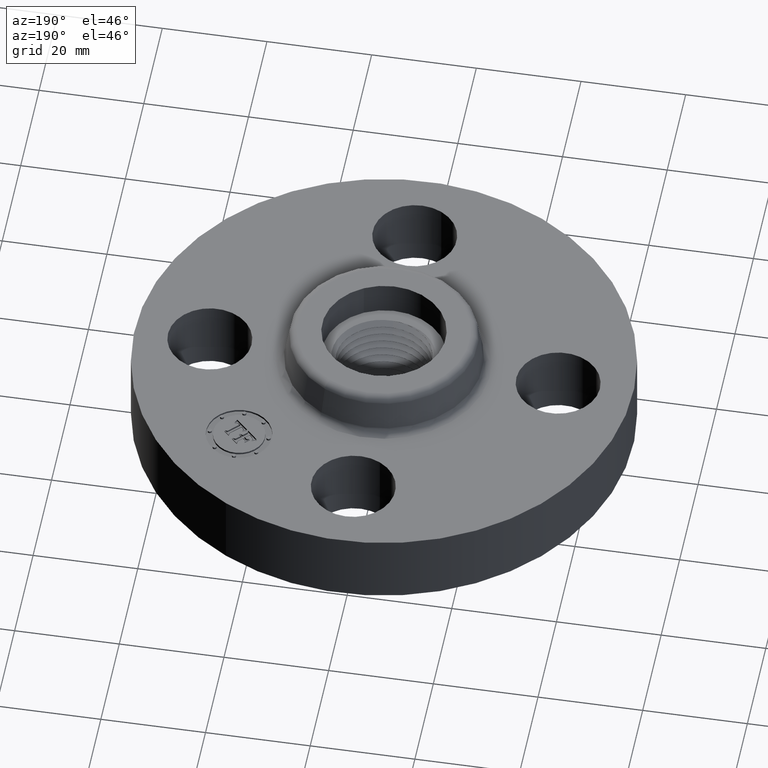
[diagram: clean part render]
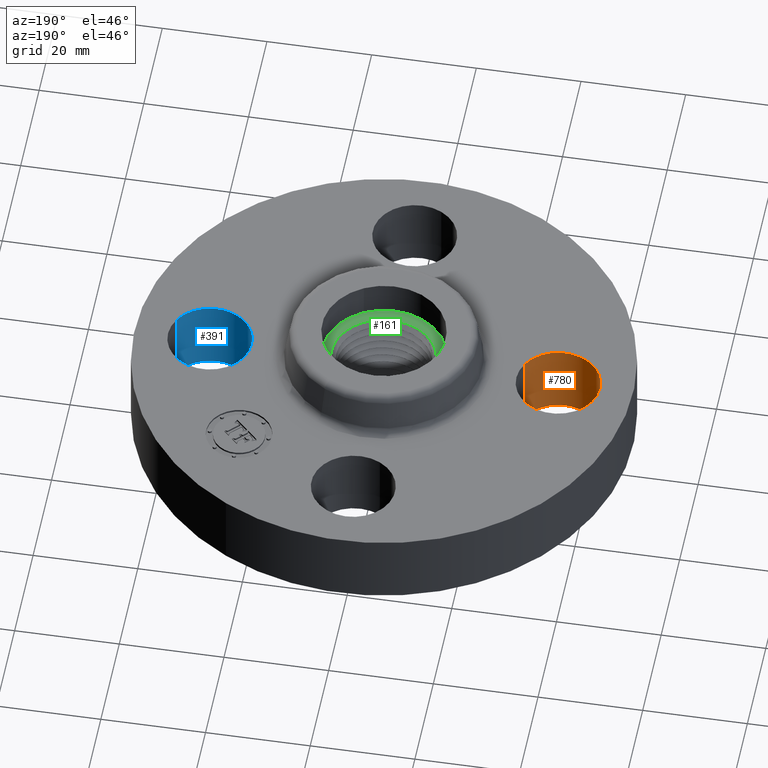
[diagram: same view with three faces highlighted in distinct colors, each labeled with its STEP entity id]
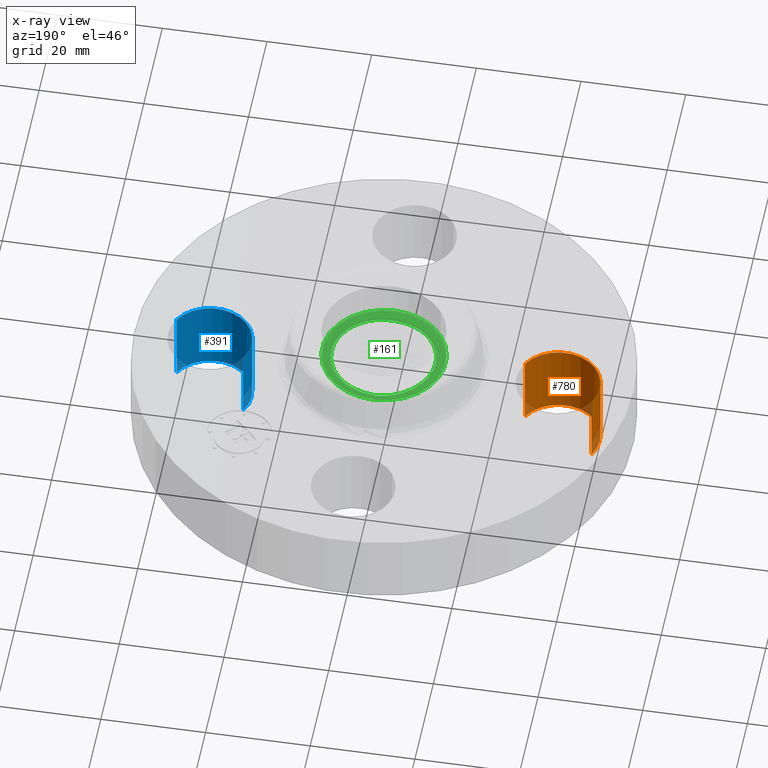
[diagram: x-ray of the same camera — body ghosted, the three highlighted faces saturated]
A machine part, auxiliary view with three faces highlighted in distinct colors.
The next image is the same camera in x-ray (body ghosted, the three faces saturated) — at least one of them is partly hidden behind the body in this view.
Their STEP definitions:

[orange] entity #780 — the highlighted cylindrical surface (partial cylindrical patch) has radius 8.001 mm, axis along (-0, 0, -1).
#672=AXIS2_PLACEMENT_3D('Circle Axis2P3D',#670,#671,$) ;
#753=AXIS2_PLACEMENT_3D('Cylinder Axis2P3D',#750,#751,#752) ;
#771=AXIS2_PLACEMENT_3D('Circle Axis2P3D',#769,#770,$) ;
#670=CARTESIAN_POINT('Axis2P3D Location',(-1.31000000001,-1.39870617276E-016,0.)) ;
#674=CARTESIAN_POINT('Vertex',(-1.03356149301,-0.151019044661,0.)) ;
#676=CARTESIAN_POINT('Vertex',(-1.586438507,0.151019044661,-6.99353086378E-017)) ;
#750=CARTESIAN_POINT('Axis2P3D Location',(-1.31000000001,-1.60428730689E-016,0.556062992128)) ;
#755=CARTESIAN_POINT('Line Origine',(-1.03356149301,-0.151019044661,0.280000000001)) ;
#759=CARTESIAN_POINT('Vertex',(-1.03356149301,-0.151019044661,0.560000000002)) ;
#762=CARTESIAN_POINT('Line Origine',(-1.586438507,0.151019044661,0.280000000001)) ;
#766=CARTESIAN_POINT('Vertex',(-1.586438507,0.151019044661,0.560000000002)) ;
#769=CARTESIAN_POINT('Axis2P3D Location',(-1.31000000001,-1.60428730689E-016,0.560000000002)) ;
#671=DIRECTION('Axis2P3D Direction',(0.,0.,-0.0393700787402)) ;
#751=DIRECTION('Axis2P3D Direction',(-0.,0.,-0.0393700787402)) ;
#752=DIRECTION('Axis2P3D XDirection',(-0.0345504945626,0.0188750212049,0.)) ;
#756=DIRECTION('Vector Direction',(0.,0.,-0.0393700787402)) ;
#763=DIRECTION('Vector Direction',(0.,0.,-0.0393700787402)) ;
#770=DIRECTION('Axis2P3D Direction',(-0.,0.,-0.0393700787402)) ;
#757=VECTOR('Line Direction',#756,0.0393700787402) ;
#764=VECTOR('Line Direction',#763,0.0393700787402) ;
#775=ORIENTED_EDGE('',*,*,#761,.F.) ;
#776=ORIENTED_EDGE('',*,*,#678,.T.) ;
#777=ORIENTED_EDGE('',*,*,#768,.T.) ;
#778=ORIENTED_EDGE('',*,*,#773,.F.) ;
#780=ADVANCED_FACE('PartBody',(#779),#754,.F.) ;
#673=CIRCLE('generated circle',#672,0.315000000001) ;
#772=CIRCLE('generated circle',#771,0.315000000001) ;
#754=CYLINDRICAL_SURFACE('generated cylinder',#753,0.315000000001) ;
#678=EDGE_CURVE('',#675,#677,#673,.T.) ;
#761=EDGE_CURVE('',#675,#760,#758,.F.) ;
#768=EDGE_CURVE('',#677,#767,#765,.F.) ;
#773=EDGE_CURVE('',#760,#767,#772,.T.) ;
#774=EDGE_LOOP('',(#775,#776,#777,#778)) ;
#779=FACE_OUTER_BOUND('',#774,.T.) ;
#758=LINE('Line',#755,#757) ;
#765=LINE('Line',#762,#764) ;
#675=VERTEX_POINT('',#674) ;
#677=VERTEX_POINT('',#676) ;
#760=VERTEX_POINT('',#759) ;
#767=VERTEX_POINT('',#766) ;

[blue] entity #391 — the highlighted cylindrical surface (partial cylindrical patch) has radius 8.001 mm, axis along (0, -0, -1).
#338=AXIS2_PLACEMENT_3D('Cylinder Axis2P3D',#335,#336,#337) ;
#377=AXIS2_PLACEMENT_3D('Circle Axis2P3D',#375,#376,$) ;
#382=AXIS2_PLACEMENT_3D('Circle Axis2P3D',#380,#381,$) ;
#335=CARTESIAN_POINT('Axis2P3D Location',(1.31000000001,0.,0.556062992128)) ;
#340=CARTESIAN_POINT('Line Origine',(1.03356149301,0.151019044661,0.280000000001)) ;
#344=CARTESIAN_POINT('Vertex',(1.03356149301,0.151019044661,-6.99353086378E-017)) ;
#346=CARTESIAN_POINT('Vertex',(1.03356149301,0.151019044661,0.560000000002)) ;
#353=CARTESIAN_POINT('Vertex',(1.586438507,-0.151019044661,-6.99353086378E-017)) ;
#356=CARTESIAN_POINT('Line Origine',(1.586438507,-0.151019044661,0.280000000001)) ;
#360=CARTESIAN_POINT('Vertex',(1.586438507,-0.151019044661,0.560000000002)) ;
#375=CARTESIAN_POINT('Axis2P3D Location',(1.31000000001,0.,0.)) ;
#380=CARTESIAN_POINT('Axis2P3D Location',(1.31000000001,0.,0.560000000002)) ;
#336=DIRECTION('Axis2P3D Direction',(0.,-0.,-0.0393700787402)) ;
#337=DIRECTION('Axis2P3D XDirection',(0.0345504945626,-0.0188750212049,0.)) ;
#341=DIRECTION('Vector Direction',(0.,0.,-0.0393700787402)) ;
#357=DIRECTION('Vector Direction',(0.,0.,-0.0393700787402)) ;
#376=DIRECTION('Axis2P3D Direction',(0.,-0.,-0.0393700787402)) ;
#381=DIRECTION('Axis2P3D Direction',(0.,-0.,-0.0393700787402)) ;
#342=VECTOR('Line Direction',#341,0.0393700787402) ;
#358=VECTOR('Line Direction',#357,0.0393700787402) ;
#386=ORIENTED_EDGE('',*,*,#362,.F.) ;
#387=ORIENTED_EDGE('',*,*,#379,.T.) ;
#388=ORIENTED_EDGE('',*,*,#348,.T.) ;
#389=ORIENTED_EDGE('',*,*,#384,.F.) ;
#391=ADVANCED_FACE('PartBody',(#390),#339,.F.) ;
#378=CIRCLE('generated circle',#377,0.315000000001) ;
#383=CIRCLE('generated circle',#382,0.315000000001) ;
#339=CYLINDRICAL_SURFACE('generated cylinder',#338,0.315000000001) ;
#348=EDGE_CURVE('',#345,#347,#343,.F.) ;
#362=EDGE_CURVE('',#354,#361,#359,.F.) ;
#379=EDGE_CURVE('',#354,#345,#378,.T.) ;
#384=EDGE_CURVE('',#361,#347,#383,.T.) ;
#385=EDGE_LOOP('',(#386,#387,#388,#389)) ;
#390=FACE_OUTER_BOUND('',#385,.T.) ;
#343=LINE('Line',#340,#342) ;
#359=LINE('Line',#356,#358) ;
#345=VERTEX_POINT('',#344) ;
#347=VERTEX_POINT('',#346) ;
#354=VERTEX_POINT('',#353) ;
#361=VERTEX_POINT('',#360) ;

[green] entity #161 — the highlighted planar face has unit normal (0, 0, 1).
#38=AXIS2_PLACEMENT_3D('Plane Axis2P3D',#35,#36,#37) ;
#42=AXIS2_PLACEMENT_3D('Circle Axis2P3D',#40,#41,$) ;
#51=AXIS2_PLACEMENT_3D('Circle Axis2P3D',#49,#50,$) ;
#60=AXIS2_PLACEMENT_3D('Circle Axis2P3D',#58,#59,$) ;
#35=CARTESIAN_POINT('Axis2P3D Location',(2.79741234551E-017,-5.24514814784E-017,0.620000000002)) ;
#40=CARTESIAN_POINT('Axis2P3D Location',(0.,0.,0.620000000002)) ;
#44=CARTESIAN_POINT('Vertex',(-0.222932875452,0.408075891281,0.620000000002)) ;
#46=CARTESIAN_POINT('Vertex',(0.222932875452,-0.408075891281,0.620000000002)) ;
#49=CARTESIAN_POINT('Axis2P3D Location',(0.,0.,0.620000000002)) ;
#58=CARTESIAN_POINT('Axis2P3D Location',(-4.19611851827E-017,6.11933950581E-017,0.620000000002)) ;
#62=CARTESIAN_POINT('Vertex',(-0.0533356987315,-0.357985311123,0.620000290307)) ;
#64=CARTESIAN_POINT('Vertex',(-0.000694067750632,-0.361936020871,0.619999635794)) ;
#68=CARTESIAN_POINT('Control Point',(-0.19641469189,0.359539285282,0.620000000002)) ;
#69=CARTESIAN_POINT('Control Point',(-0.231906291351,0.337939822103,0.620000000002)) ;
#70=CARTESIAN_POINT('Control Point',(-0.264555041629,0.311898366213,0.620000000002)) ;
#71=CARTESIAN_POINT('Control Point',(-0.293599581317,0.28189953706,0.620000000002)) ;
#72=CARTESIAN_POINT('Control Point',(-0.34323122033,0.215346899635,0.620000000002)) ;
#73=CARTESIAN_POINT('Control Point',(-0.374241916742,0.138886024849,0.620000000002)) ;
#74=CARTESIAN_POINT('Control Point',(-0.384671583135,0.0989607416978,0.620000000002)) ;
#75=CARTESIAN_POINT('Control Point',(-0.392876981801,0.0338553004108,0.620000000002)) ;
#76=CARTESIAN_POINT('Control Point',(-0.387578456354,-0.0308830502783,0.620000000002)) ;
#77=CARTESIAN_POINT('Control Point',(-0.383698104883,-0.0549084753062,0.620000000002)) ;
#78=CARTESIAN_POINT('Control Point',(-0.368396108907,-0.117786197096,0.620000000002)) ;
#79=CARTESIAN_POINT('Control Point',(-0.34036925883,-0.176119573603,0.620000000002)) ;
#80=CARTESIAN_POINT('Control Point',(-0.31819438468,-0.209926022148,0.620000000002)) ;
#81=CARTESIAN_POINT('Control Point',(-0.265615442278,-0.270687787039,0.620000000002)) ;
#82=CARTESIAN_POINT('Control Point',(-0.199478546436,-0.315296357699,0.620000000002)) ;
#83=CARTESIAN_POINT('Control Point',(-0.163711874744,-0.332974900355,0.620000000002)) ;
#84=CARTESIAN_POINT('Control Point',(-0.119470399451,-0.347849612214,0.620000000002)) ;
#85=CARTESIAN_POINT('Control Point',(-0.0740355310959,-0.355508960267,0.620000000002)) ;
#86=CARTESIAN_POINT('Control Point',(-0.0671463195103,-0.35650102205,0.620000000002)) ;
#87=CARTESIAN_POINT('Control Point',(-0.0602465944328,-0.357326133663,0.620000000002)) ;
#88=CARTESIAN_POINT('Control Point',(-0.053335622219,-0.357984884178,0.620000000002)) ;
#89=CARTESIAN_POINT('Vertex',(-0.19641469189,0.359539285282,0.620000000002)) ;
#93=CARTESIAN_POINT('Control Point',(-0.0327498041604,0.416478176841,0.620000000002)) ;
#94=CARTESIAN_POINT('Control Point',(-0.0675561632247,0.412129698549,0.620000000002)) ;
#95=CARTESIAN_POINT('Control Point',(-0.101827238084,0.404133685707,0.620000000002)) ;
#96=CARTESIAN_POINT('Control Point',(-0.135056697362,0.392562891337,0.620000000002)) ;
#97=CARTESIAN_POINT('Control Point',(-0.166730039054,0.377604759249,0.620000000002)) ;
#98=CARTESIAN_POINT('Control Point',(-0.19641469189,0.359539285282,0.620000000002)) ;
#99=CARTESIAN_POINT('Vertex',(-0.0327498041604,0.416478176841,0.620000000002)) ;
#103=CARTESIAN_POINT('Control Point',(-0.0327498041604,0.416478176841,0.620000000002)) ;
#104=CARTESIAN_POINT('Control Point',(-0.0261981730984,0.416720888703,0.620000000002)) ;
#105=CARTESIAN_POINT('Control Point',(-0.0196442395344,0.416834862635,0.620000000002)) ;
#106=CARTESIAN_POINT('Control Point',(-0.0130868745793,0.416819978321,0.620000000002)) ;
#107=CARTESIAN_POINT('Control Point',(-0.0065384507902,0.41667631952,0.620000000002)) ;
#108=CARTESIAN_POINT('Control Point',(2.17680126113E-006,0.416404120074,0.620000000002)) ;
#109=CARTESIAN_POINT('Vertex',(2.17680126113E-006,0.416404120074,0.620000000002)) ;
#113=CARTESIAN_POINT('Control Point',(2.17680126104E-006,0.416404120074,0.620000000002)) ;
#114=CARTESIAN_POINT('Control Point',(0.041852704137,0.414662438605,0.620000000002)) ;
#115=CARTESIAN_POINT('Control Point',(0.083384037675,0.407658117585,0.620000000002)) ;
#116=CARTESIAN_POINT('Control Point',(0.123703736541,0.39544112682,0.620000000002)) ;
#117=CARTESIAN_POINT('Control Point',(0.200157531876,0.361157702352,0.620000000002)) ;
#118=CARTESIAN_POINT('Control Point',(0.265255327149,0.309092076696,0.620000000002)) ;
#119=CARTESIAN_POINT('Control Point',(0.294213722787,0.279091775356,0.620000000002)) ;
#120=CARTESIAN_POINT('Control Point',(0.333770600676,0.225842433228,0.620000000002)) ;
#121=CARTESIAN_POINT('Control Point',(0.36141260979,0.166209856153,0.620000000002)) ;
#122=CARTESIAN_POINT('Control Point',(0.37000671653,0.143132357094,0.620000000002)) ;
#123=CARTESIAN_POINT('Control Point',(0.388027713776,0.0801785079176,0.620000000002)) ;
#124=CARTESIAN_POINT('Control Point',(0.392754098098,0.0148058976492,0.620000000002)) ;
#125=CARTESIAN_POINT('Control Point',(0.390348891918,-0.02608349843,0.620000000002)) ;
#126=CARTESIAN_POINT('Control Point',(0.374981905904,-0.106050257003,0.620000000002)) ;
#127=CARTESIAN_POINT('Control Point',(0.339743558481,-0.178926983096,0.620000000002)) ;
#128=CARTESIAN_POINT('Control Point',(0.317460379477,-0.212734606364,0.620000000002)) ;
#129=CARTESIAN_POINT('Control Point',(0.277640289748,-0.258549754882,0.620000000002)) ;
#130=CARTESIAN_POINT('Control Point',(0.230067491226,-0.295195721571,0.620000000002)) ;
#131=CARTESIAN_POINT('Control Point',(0.213251006204,-0.306423218555,0.620000000002)) ;
#132=CARTESIAN_POINT('Control Point',(0.195752973255,-0.31646297995,0.620000000002)) ;
#133=CARTESIAN_POINT('Control Point',(0.177687266923,-0.325262754407,0.620000000002)) ;
#134=CARTESIAN_POINT('Vertex',(0.177687266923,-0.325262754407,0.620000000002)) ;
#138=CARTESIAN_POINT('Control Point',(0.177687266923,-0.325262754407,0.620000000002)) ;
#139=CARTESIAN_POINT('Control Point',(0.144520822999,-0.341418072159,0.620000000002)) ;
#140=CARTESIAN_POINT('Control Point',(0.109441008017,-0.353394076822,0.620000000002)) ;
#141=CARTESIAN_POINT('Control Point',(0.0731292788827,-0.360874518377,0.620000000002)) ;
#142=CARTESIAN_POINT('Control Point',(0.0363949335759,-0.363712045236,0.620000000002)) ;
#143=CARTESIAN_POINT('Control Point',(-4.82937678331E-006,-0.361969138514,0.620000000002)) ;
#144=CARTESIAN_POINT('Vertex',(-4.83091162576E-006,-0.361937362568,0.620021275599)) ;
#147=CARTESIAN_POINT('Line Origine',(-0.000349451012949,-0.361936147241,0.620000000002)) ;
#36=DIRECTION('Axis2P3D Direction',(0.,0.,0.0393700787402)) ;
#37=DIRECTION('Axis2P3D XDirection',(0.0393700787402,0.,0.)) ;
#41=DIRECTION('Axis2P3D Direction',(0.,0.,0.0393700787402)) ;
#50=DIRECTION('Axis2P3D Direction',(0.,0.,0.0393700787402)) ;
#59=DIRECTION('Axis2P3D Direction',(0.,0.,0.0393700787402)) ;
#148=DIRECTION('Vector Direction',(-0.0393700041444,7.66399276692E-005,0.)) ;
#149=VECTOR('Line Direction',#148,0.0393700787402) ;
#55=ORIENTED_EDGE('',*,*,#48,.T.) ;
#56=ORIENTED_EDGE('',*,*,#53,.T.) ;
#153=ORIENTED_EDGE('',*,*,#66,.F.) ;
#154=ORIENTED_EDGE('',*,*,#91,.F.) ;
#155=ORIENTED_EDGE('',*,*,#101,.F.) ;
#156=ORIENTED_EDGE('',*,*,#111,.T.) ;
#157=ORIENTED_EDGE('',*,*,#136,.T.) ;
#158=ORIENTED_EDGE('',*,*,#146,.T.) ;
#159=ORIENTED_EDGE('',*,*,#151,.F.) ;
#160=FACE_BOUND('',#152,.T.) ;
#161=ADVANCED_FACE('PartBody',(#57,#160),#39,.T.) ;
#67=B_SPLINE_CURVE_WITH_KNOTS('',5,(#68,#69,#70,#71,#72,#73,#74,#75,#76,#77,#78,#79,#80,#81,#82,#83,#84,#85,#86,#87,#88),.UNSPECIFIED.,.F.,.U.,(6,3,3,3,3,3,6),(0.,7.29223781791,14.5877467941,18.9641528868,26.2595746905,33.5630644699,34.8621459299),.UNSPECIFIED.) ;
#92=B_SPLINE_CURVE_WITH_KNOTS('',5,(#93,#94,#95,#96,#97,#98),.UNSPECIFIED.,.F.,.U.,(6,6),(0.,6.09912067433),.UNSPECIFIED.) ;
#102=B_SPLINE_CURVE_WITH_KNOTS('',5,(#103,#104,#105,#106,#107,#108),.UNSPECIFIED.,.F.,.U.,(6,6),(0.,1.13990897978),.UNSPECIFIED.) ;
#112=B_SPLINE_CURVE_WITH_KNOTS('',5,(#113,#114,#115,#116,#117,#118,#119,#120,#121,#122,#123,#124,#125,#126,#127,#128,#129,#130,#131,#132,#133),.UNSPECIFIED.,.F.,.U.,(6,3,3,3,3,3,6),(0.,7.29376367103,14.5864816977,18.9589272488,26.2431447126,33.5290058874,37.2315777466),.UNSPECIFIED.) ;
#137=B_SPLINE_CURVE_WITH_KNOTS('',5,(#138,#139,#140,#141,#142,#143),.UNSPECIFIED.,.F.,.U.,(6,6),(0.,6.79747249797),.UNSPECIFIED.) ;
#43=CIRCLE('generated circle',#42,0.465000000002) ;
#52=CIRCLE('generated circle',#51,0.465000000002) ;
#61=CIRCLE('generated circle',#60,0.361936697742) ;
#48=EDGE_CURVE('',#45,#47,#43,.T.) ;
#53=EDGE_CURVE('',#47,#45,#52,.T.) ;
#66=EDGE_CURVE('',#63,#65,#61,.T.) ;
#91=EDGE_CURVE('',#90,#63,#67,.T.) ;
#101=EDGE_CURVE('',#100,#90,#92,.T.) ;
#111=EDGE_CURVE('',#100,#110,#102,.T.) ;
#136=EDGE_CURVE('',#110,#135,#112,.T.) ;
#146=EDGE_CURVE('',#135,#145,#137,.T.) ;
#151=EDGE_CURVE('',#65,#145,#150,.F.) ;
#54=EDGE_LOOP('',(#55,#56)) ;
#152=EDGE_LOOP('',(#153,#154,#155,#156,#157,#158,#159)) ;
#57=FACE_OUTER_BOUND('',#54,.T.) ;
#150=LINE('Line',#147,#149) ;
#39=PLANE('',#38) ;
#45=VERTEX_POINT('',#44) ;
#47=VERTEX_POINT('',#46) ;
#63=VERTEX_POINT('',#62) ;
#65=VERTEX_POINT('',#64) ;
#90=VERTEX_POINT('',#89) ;
#100=VERTEX_POINT('',#99) ;
#110=VERTEX_POINT('',#109) ;
#135=VERTEX_POINT('',#134) ;
#145=VERTEX_POINT('',#144) ;